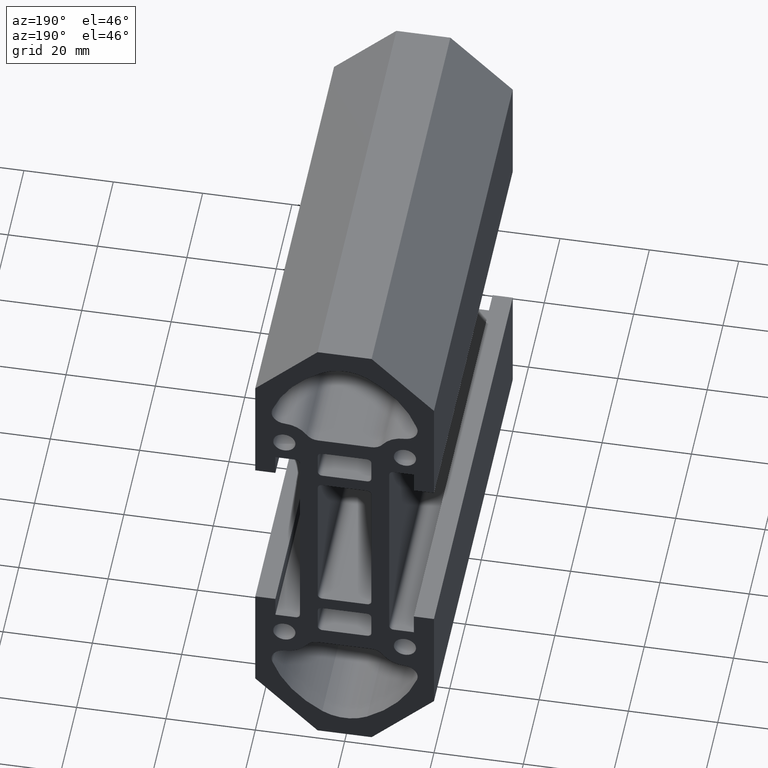
[diagram: clean part render]
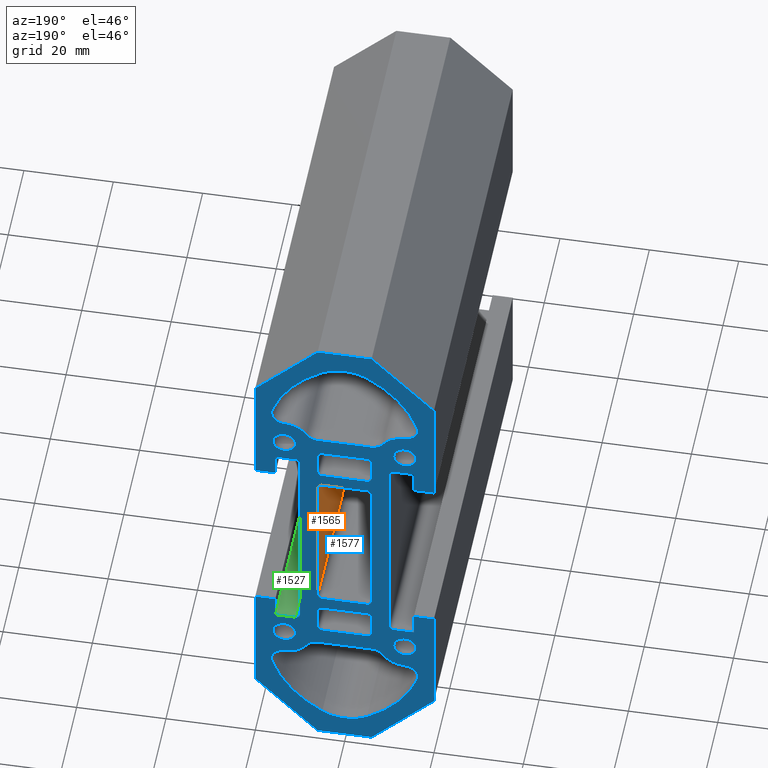
[diagram: same view with three faces highlighted in distinct colors, each labeled with its STEP entity id]
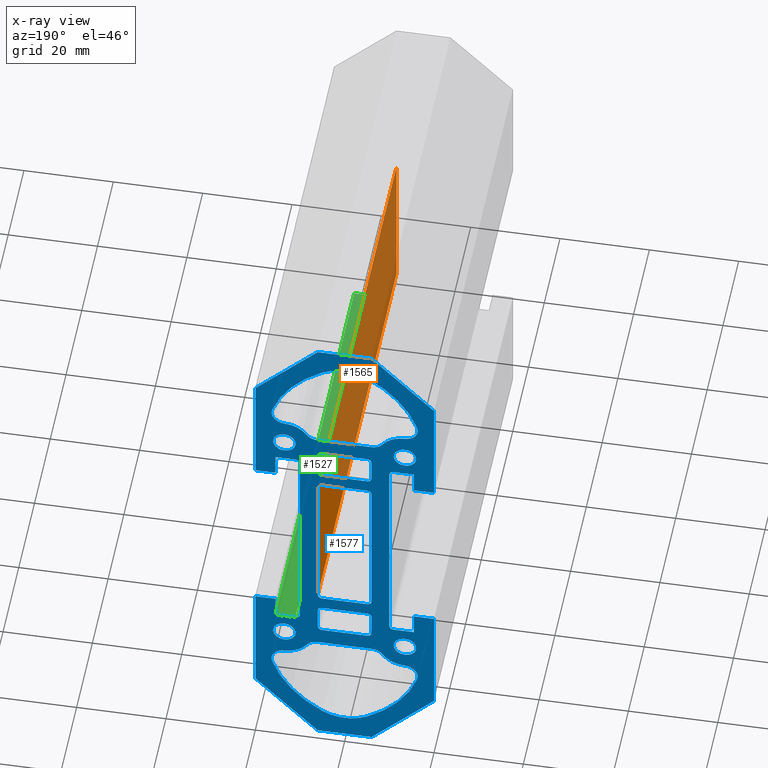
[diagram: x-ray of the same camera — body ghosted, the three highlighted faces saturated]
A machine part, auxiliary view with three faces highlighted in distinct colors.
The next image is the same camera in x-ray (body ghosted, the three faces saturated) — at least one of them is partly hidden behind the body in this view.
Their STEP definitions:

[orange] entity #1565 — the highlighted planar face has unit normal (-1, 0, 0).
#59=PLANE('',#1742);
#137=FACE_OUTER_BOUND('',#215,.T.);
#215=EDGE_LOOP('',(#1263,#1264,#1265,#1266));
#256=LINE('',#2257,#408);
#333=LINE('',#2488,#485);
#366=LINE('',#2613,#518);
#367=LINE('',#2614,#519);
#408=VECTOR('',#1791,10.);
#485=VECTOR('',#2022,10.);
#518=VECTOR('',#2159,10.);
#519=VECTOR('',#2160,10.);
#641=VERTEX_POINT('',#2253);
#643=VERTEX_POINT('',#2256);
#717=VERTEX_POINT('',#2481);
#720=VERTEX_POINT('',#2486);
#795=EDGE_CURVE('',#643,#641,#256,.T.);
#911=EDGE_CURVE('',#720,#717,#333,.T.);
#974=EDGE_CURVE('',#720,#643,#366,.T.);
#975=EDGE_CURVE('',#717,#641,#367,.T.);
#1263=ORIENTED_EDGE('',*,*,#911,.F.);
#1264=ORIENTED_EDGE('',*,*,#974,.T.);
#1265=ORIENTED_EDGE('',*,*,#795,.T.);
#1266=ORIENTED_EDGE('',*,*,#975,.F.);
#1565=ADVANCED_FACE('',(#137),#59,.T.);
#1742=AXIS2_PLACEMENT_3D('',#2612,#2157,#2158);
#1791=DIRECTION('',(0.,-1.,0.));
#2022=DIRECTION('',(0.,-1.,0.));
#2157=DIRECTION('center_axis',(-1.,0.,0.));
#2158=DIRECTION('ref_axis',(0.,0.,1.));
#2159=DIRECTION('',(0.,0.,-1.));
#2160=DIRECTION('',(0.,0.,-1.));
#2253=CARTESIAN_POINT('',(6.,0.,-17.));
#2256=CARTESIAN_POINT('',(6.,100.,-17.));
#2257=CARTESIAN_POINT('',(6.,0.,-17.));
#2481=CARTESIAN_POINT('',(6.,0.,17.));
#2486=CARTESIAN_POINT('',(6.,100.,17.));
#2488=CARTESIAN_POINT('',(6.,0.,17.));
#2612=CARTESIAN_POINT('Origin',(6.,0.,0.));
#2613=CARTESIAN_POINT('',(6.,100.,0.));
#2614=CARTESIAN_POINT('',(6.,0.,0.));

[blue] entity #1577 — the highlighted planar face has unit normal (0, 1, 0).
#15=FACE_BOUND('',#228,.T.);
#16=FACE_BOUND('',#229,.T.);
#17=FACE_BOUND('',#230,.T.);
#18=FACE_BOUND('',#231,.T.);
#19=FACE_BOUND('',#232,.T.);
#20=FACE_BOUND('',#233,.T.);
#21=FACE_BOUND('',#234,.T.);
#22=FACE_BOUND('',#235,.T.);
#23=FACE_BOUND('',#236,.T.);
#71=PLANE('',#1754);
#149=FACE_OUTER_BOUND('',#227,.T.);
#227=EDGE_LOOP('',(#1311,#1312,#1313,#1314,#1315,#1316,#1317,#1318,#1319,
#1320,#1321,#1322,#1323,#1324,#1325,#1326,#1327,#1328,#1329,#1330,#1331,
#1332,#1333,#1334,#1335,#1336,#1337,#1338));
#228=EDGE_LOOP('',(#1339,#1340,#1341,#1342,#1343,#1344,#1345,#1346));
#229=EDGE_LOOP('',(#1347));
#230=EDGE_LOOP('',(#1348));
#231=EDGE_LOOP('',(#1349,#1350,#1351,#1352,#1353,#1354,#1355,#1356));
#232=EDGE_LOOP('',(#1357,#1358,#1359,#1360,#1361,#1362,#1363,#1364,#1365,
#1366));
#233=EDGE_LOOP('',(#1367,#1368,#1369,#1370,#1371,#1372,#1373,#1374,#1375,
#1376));
#234=EDGE_LOOP('',(#1377,#1378,#1379,#1380,#1381,#1382,#1383,#1384));
#235=EDGE_LOOP('',(#1385));
#236=EDGE_LOOP('',(#1386));
#251=LINE('',#2239,#403);
#259=LINE('',#2263,#411);
#262=LINE('',#2275,#414);
#268=LINE('',#2290,#420);
#270=LINE('',#2299,#422);
#275=LINE('',#2311,#427);
#287=LINE('',#2371,#439);
#292=LINE('',#2389,#444);
#295=LINE('',#2395,#447);
#298=LINE('',#2401,#450);
#301=LINE('',#2407,#453);
#304=LINE('',#2413,#456);
#307=LINE('',#2419,#459);
#310=LINE('',#2425,#462);
#313=LINE('',#2431,#465);
#316=LINE('',#2437,#468);
#318=LINE('',#2440,#470);
#322=LINE('',#2452,#474);
#327=LINE('',#2467,#479);
#331=LINE('',#2479,#483);
#334=LINE('',#2490,#486);
#340=LINE('',#2506,#492);
#343=LINE('',#2517,#495);
#348=LINE('',#2530,#500);
#350=LINE('',#2538,#502);
#363=LINE('',#2599,#515);
#366=LINE('',#2613,#518);
#368=LINE('',#2617,#520);
#372=LINE('',#2625,#524);
#375=LINE('',#2631,#527);
#378=LINE('',#2637,#530);
#381=LINE('',#2643,#533);
#384=LINE('',#2649,#536);
#387=LINE('',#2655,#539);
#390=LINE('',#2661,#542);
#393=LINE('',#2667,#545);
#396=LINE('',#2671,#548);
#397=LINE('',#2673,#549);
#403=VECTOR('',#1776,10.);
#411=VECTOR('',#1798,10.);
#414=VECTOR('',#1809,10.);
#420=VECTOR('',#1823,10.);
#422=VECTOR('',#1833,10.);
#427=VECTOR('',#1846,10.);
#439=VECTOR('',#1914,10.);
#444=VECTOR('',#1933,10.);
#447=VECTOR('',#1938,10.);
#450=VECTOR('',#1943,10.);
#453=VECTOR('',#1948,10.);
#456=VECTOR('',#1953,10.);
#459=VECTOR('',#1958,10.);
#462=VECTOR('',#1963,10.);
#465=VECTOR('',#1968,10.);
#468=VECTOR('',#1973,10.);
#470=VECTOR('',#1977,10.);
#474=VECTOR('',#1989,10.);
#479=VECTOR('',#2002,10.);
#483=VECTOR('',#2014,10.);
#486=VECTOR('',#2025,10.);
#492=VECTOR('',#2039,10.);
#495=VECTOR('',#2050,10.);
#500=VECTOR('',#2063,10.);
#502=VECTOR('',#2073,10.);
#515=VECTOR('',#2142,10.);
#518=VECTOR('',#2159,10.);
#520=VECTOR('',#2163,10.);
#524=VECTOR('',#2169,10.);
#527=VECTOR('',#2174,10.);
#530=VECTOR('',#2179,10.);
#533=VECTOR('',#2184,10.);
#536=VECTOR('',#2189,10.);
#539=VECTOR('',#2194,10.);
#542=VECTOR('',#2199,10.);
#545=VECTOR('',#2204,10.);
#548=VECTOR('',#2209,10.);
#549=VECTOR('',#2212,10.);
#552=CIRCLE('',#1604,1.);
#554=CIRCLE('',#1607,1.);
#556=CIRCLE('',#1611,1.);
#558=CIRCLE('',#1614,1.);
#560=CIRCLE('',#1618,1.);
#562=CIRCLE('',#1622,1.);
#564=CIRCLE('',#1626,1.);
#566=CIRCLE('',#1630,1.);
#568=CIRCLE('',#1634,3.);
#570=CIRCLE('',#1637,6.);
#572=CIRCLE('',#1640,3.);
#574=CIRCLE('',#1643,25.);
#576=CIRCLE('',#1646,9.99999999999997);
#578=CIRCLE('',#1649,25.);
#580=CIRCLE('',#1652,3.);
#582=CIRCLE('',#1655,6.);
#584=CIRCLE('',#1658,3.);
#586=CIRCLE('',#1662,2.5);
#588=CIRCLE('',#1665,2.5);
#590=CIRCLE('',#1678,1.);
#592=CIRCLE('',#1682,1.);
#594=CIRCLE('',#1686,1.);
#596=CIRCLE('',#1690,1.);
#598=CIRCLE('',#1694,1.);
#600=CIRCLE('',#1698,1.);
#602=CIRCLE('',#1702,1.);
#604=CIRCLE('',#1706,1.);
#606=CIRCLE('',#1710,3.);
#608=CIRCLE('',#1713,6.);
#610=CIRCLE('',#1716,3.);
#612=CIRCLE('',#1719,25.);
#614=CIRCLE('',#1722,9.99999999999997);
#616=CIRCLE('',#1725,25.);
#618=CIRCLE('',#1728,3.);
#620=CIRCLE('',#1731,6.);
#622=CIRCLE('',#1734,3.);
#624=CIRCLE('',#1738,2.5);
#626=CIRCLE('',#1741,2.5);
#629=VERTEX_POINT('',#2223);
#630=VERTEX_POINT('',#2225);
#633=VERTEX_POINT('',#2232);
#634=VERTEX_POINT('',#2234);
#635=VERTEX_POINT('',#2238);
#639=VERTEX_POINT('',#2247);
#640=VERTEX_POINT('',#2249);
#643=VERTEX_POINT('',#2256);
#644=VERTEX_POINT('',#2258);
#647=VERTEX_POINT('',#2268);
#648=VERTEX_POINT('',#2270);
#649=VERTEX_POINT('',#2274);
#653=VERTEX_POINT('',#2283);
#654=VERTEX_POINT('',#2285);
#656=VERTEX_POINT('',#2294);
#657=VERTEX_POINT('',#2298);
#660=VERTEX_POINT('',#2306);
#663=VERTEX_POINT('',#2316);
#664=VERTEX_POINT('',#2318);
#666=VERTEX_POINT('',#2324);
#668=VERTEX_POINT('',#2330);
#670=VERTEX_POINT('',#2336);
#672=VERTEX_POINT('',#2342);
#674=VERTEX_POINT('',#2348);
#676=VERTEX_POINT('',#2354);
#678=VERTEX_POINT('',#2360);
#680=VERTEX_POINT('',#2366);
#682=VERTEX_POINT('',#2375);
#684=VERTEX_POINT('',#2381);
#686=VERTEX_POINT('',#2387);
#688=VERTEX_POINT('',#2393);
#690=VERTEX_POINT('',#2399);
#692=VERTEX_POINT('',#2405);
#694=VERTEX_POINT('',#2411);
#696=VERTEX_POINT('',#2417);
#698=VERTEX_POINT('',#2423);
#700=VERTEX_POINT('',#2429);
#702=VERTEX_POINT('',#2435);
#705=VERTEX_POINT('',#2445);
#706=VERTEX_POINT('',#2447);
#709=VERTEX_POINT('',#2457);
#710=VERTEX_POINT('',#2459);
#712=VERTEX_POINT('',#2465);
#715=VERTEX_POINT('',#2472);
#716=VERTEX_POINT('',#2474);
#719=VERTEX_POINT('',#2484);
#720=VERTEX_POINT('',#2486);
#723=VERTEX_POINT('',#2496);
#724=VERTEX_POINT('',#2498);
#726=VERTEX_POINT('',#2504);
#729=VERTEX_POINT('',#2511);
#730=VERTEX_POINT('',#2513);
#732=VERTEX_POINT('',#2522);
#734=VERTEX_POINT('',#2528);
#736=VERTEX_POINT('',#2534);
#739=VERTEX_POINT('',#2544);
#740=VERTEX_POINT('',#2546);
#742=VERTEX_POINT('',#2552);
#744=VERTEX_POINT('',#2558);
#746=VERTEX_POINT('',#2564);
#748=VERTEX_POINT('',#2570);
#750=VERTEX_POINT('',#2576);
#752=VERTEX_POINT('',#2582);
#754=VERTEX_POINT('',#2588);
#756=VERTEX_POINT('',#2594);
#758=VERTEX_POINT('',#2603);
#760=VERTEX_POINT('',#2609);
#761=VERTEX_POINT('',#2616);
#764=VERTEX_POINT('',#2624);
#766=VERTEX_POINT('',#2630);
#768=VERTEX_POINT('',#2636);
#770=VERTEX_POINT('',#2642);
#772=VERTEX_POINT('',#2648);
#774=VERTEX_POINT('',#2654);
#776=VERTEX_POINT('',#2660);
#778=VERTEX_POINT('',#2666);
#781=EDGE_CURVE('',#630,#629,#552,.T.);
#785=EDGE_CURVE('',#634,#633,#554,.T.);
#787=EDGE_CURVE('',#634,#635,#251,.T.);
#792=EDGE_CURVE('',#640,#639,#556,.T.);
#796=EDGE_CURVE('',#644,#643,#558,.T.);
#799=EDGE_CURVE('',#644,#639,#259,.T.);
#802=EDGE_CURVE('',#648,#647,#560,.T.);
#804=EDGE_CURVE('',#648,#649,#262,.T.);
#809=EDGE_CURVE('',#654,#653,#562,.T.);
#812=EDGE_CURVE('',#654,#647,#268,.T.);
#814=EDGE_CURVE('',#656,#649,#564,.T.);
#816=EDGE_CURVE('',#656,#657,#270,.T.);
#820=EDGE_CURVE('',#660,#657,#566,.T.);
#823=EDGE_CURVE('',#660,#653,#275,.T.);
#826=EDGE_CURVE('',#663,#664,#568,.T.);
#829=EDGE_CURVE('',#664,#666,#570,.T.);
#832=EDGE_CURVE('',#666,#668,#572,.T.);
#835=EDGE_CURVE('',#668,#670,#574,.T.);
#838=EDGE_CURVE('',#670,#672,#576,.T.);
#841=EDGE_CURVE('',#672,#674,#578,.T.);
#844=EDGE_CURVE('',#674,#676,#580,.T.);
#847=EDGE_CURVE('',#676,#678,#582,.T.);
#850=EDGE_CURVE('',#678,#680,#584,.T.);
#853=EDGE_CURVE('',#680,#663,#287,.T.);
#856=EDGE_CURVE('',#682,#682,#586,.T.);
#859=EDGE_CURVE('',#684,#684,#588,.T.);
#862=EDGE_CURVE('',#686,#629,#292,.T.);
#865=EDGE_CURVE('',#688,#686,#295,.T.);
#868=EDGE_CURVE('',#690,#688,#298,.T.);
#871=EDGE_CURVE('',#692,#690,#301,.T.);
#874=EDGE_CURVE('',#694,#692,#304,.T.);
#877=EDGE_CURVE('',#696,#694,#307,.T.);
#880=EDGE_CURVE('',#698,#696,#310,.T.);
#883=EDGE_CURVE('',#700,#698,#313,.T.);
#886=EDGE_CURVE('',#702,#700,#316,.T.);
#888=EDGE_CURVE('',#635,#702,#318,.T.);
#891=EDGE_CURVE('',#705,#706,#590,.T.);
#894=EDGE_CURVE('',#705,#630,#322,.T.);
#897=EDGE_CURVE('',#709,#710,#592,.T.);
#901=EDGE_CURVE('',#709,#712,#327,.T.);
#904=EDGE_CURVE('',#715,#716,#594,.T.);
#907=EDGE_CURVE('',#715,#640,#331,.T.);
#910=EDGE_CURVE('',#719,#720,#596,.T.);
#912=EDGE_CURVE('',#719,#716,#334,.T.);
#916=EDGE_CURVE('',#723,#724,#598,.T.);
#920=EDGE_CURVE('',#723,#726,#340,.T.);
#923=EDGE_CURVE('',#729,#730,#600,.T.);
#925=EDGE_CURVE('',#729,#724,#343,.T.);
#929=EDGE_CURVE('',#732,#726,#602,.T.);
#932=EDGE_CURVE('',#732,#734,#348,.T.);
#935=EDGE_CURVE('',#736,#734,#604,.T.);
#936=EDGE_CURVE('',#736,#730,#350,.T.);
#940=EDGE_CURVE('',#740,#739,#606,.T.);
#944=EDGE_CURVE('',#739,#742,#608,.T.);
#947=EDGE_CURVE('',#742,#744,#610,.T.);
#950=EDGE_CURVE('',#744,#746,#612,.T.);
#953=EDGE_CURVE('',#746,#748,#614,.T.);
#956=EDGE_CURVE('',#748,#750,#616,.T.);
#959=EDGE_CURVE('',#750,#752,#618,.T.);
#962=EDGE_CURVE('',#752,#754,#620,.T.);
#965=EDGE_CURVE('',#754,#756,#622,.T.);
#967=EDGE_CURVE('',#756,#740,#363,.T.);
#970=EDGE_CURVE('',#758,#758,#624,.T.);
#973=EDGE_CURVE('',#760,#760,#626,.T.);
#974=EDGE_CURVE('',#720,#643,#366,.T.);
#976=EDGE_CURVE('',#761,#706,#368,.T.);
#980=EDGE_CURVE('',#764,#761,#372,.T.);
#983=EDGE_CURVE('',#766,#764,#375,.T.);
#986=EDGE_CURVE('',#768,#766,#378,.T.);
#989=EDGE_CURVE('',#770,#768,#381,.T.);
#992=EDGE_CURVE('',#772,#770,#384,.T.);
#995=EDGE_CURVE('',#774,#772,#387,.T.);
#998=EDGE_CURVE('',#776,#774,#390,.T.);
#1001=EDGE_CURVE('',#778,#776,#393,.T.);
#1004=EDGE_CURVE('',#712,#778,#396,.T.);
#1005=EDGE_CURVE('',#710,#633,#397,.T.);
#1311=ORIENTED_EDGE('',*,*,#894,.T.);
#1312=ORIENTED_EDGE('',*,*,#781,.T.);
#1313=ORIENTED_EDGE('',*,*,#862,.F.);
#1314=ORIENTED_EDGE('',*,*,#865,.F.);
#1315=ORIENTED_EDGE('',*,*,#868,.F.);
#1316=ORIENTED_EDGE('',*,*,#871,.F.);
#1317=ORIENTED_EDGE('',*,*,#874,.F.);
#1318=ORIENTED_EDGE('',*,*,#877,.F.);
#1319=ORIENTED_EDGE('',*,*,#880,.F.);
#1320=ORIENTED_EDGE('',*,*,#883,.F.);
#1321=ORIENTED_EDGE('',*,*,#886,.F.);
#1322=ORIENTED_EDGE('',*,*,#888,.F.);
#1323=ORIENTED_EDGE('',*,*,#787,.F.);
#1324=ORIENTED_EDGE('',*,*,#785,.T.);
#1325=ORIENTED_EDGE('',*,*,#1005,.F.);
#1326=ORIENTED_EDGE('',*,*,#897,.F.);
#1327=ORIENTED_EDGE('',*,*,#901,.T.);
#1328=ORIENTED_EDGE('',*,*,#1004,.T.);
#1329=ORIENTED_EDGE('',*,*,#1001,.T.);
#1330=ORIENTED_EDGE('',*,*,#998,.T.);
#1331=ORIENTED_EDGE('',*,*,#995,.T.);
#1332=ORIENTED_EDGE('',*,*,#992,.T.);
#1333=ORIENTED_EDGE('',*,*,#989,.T.);
#1334=ORIENTED_EDGE('',*,*,#986,.T.);
#1335=ORIENTED_EDGE('',*,*,#983,.T.);
#1336=ORIENTED_EDGE('',*,*,#980,.T.);
#1337=ORIENTED_EDGE('',*,*,#976,.T.);
#1338=ORIENTED_EDGE('',*,*,#891,.F.);
#1339=ORIENTED_EDGE('',*,*,#974,.F.);
#1340=ORIENTED_EDGE('',*,*,#910,.F.);
#1341=ORIENTED_EDGE('',*,*,#912,.T.);
#1342=ORIENTED_EDGE('',*,*,#904,.F.);
#1343=ORIENTED_EDGE('',*,*,#907,.T.);
#1344=ORIENTED_EDGE('',*,*,#792,.T.);
#1345=ORIENTED_EDGE('',*,*,#799,.F.);
#1346=ORIENTED_EDGE('',*,*,#796,.T.);
#1347=ORIENTED_EDGE('',*,*,#859,.F.);
#1348=ORIENTED_EDGE('',*,*,#856,.F.);
#1349=ORIENTED_EDGE('',*,*,#823,.F.);
#1350=ORIENTED_EDGE('',*,*,#820,.T.);
#1351=ORIENTED_EDGE('',*,*,#816,.F.);
#1352=ORIENTED_EDGE('',*,*,#814,.T.);
#1353=ORIENTED_EDGE('',*,*,#804,.F.);
#1354=ORIENTED_EDGE('',*,*,#802,.T.);
#1355=ORIENTED_EDGE('',*,*,#812,.F.);
#1356=ORIENTED_EDGE('',*,*,#809,.T.);
#1357=ORIENTED_EDGE('',*,*,#826,.F.);
#1358=ORIENTED_EDGE('',*,*,#853,.F.);
#1359=ORIENTED_EDGE('',*,*,#850,.F.);
#1360=ORIENTED_EDGE('',*,*,#847,.F.);
#1361=ORIENTED_EDGE('',*,*,#844,.F.);
#1362=ORIENTED_EDGE('',*,*,#841,.F.);
#1363=ORIENTED_EDGE('',*,*,#838,.F.);
#1364=ORIENTED_EDGE('',*,*,#835,.F.);
#1365=ORIENTED_EDGE('',*,*,#832,.F.);
#1366=ORIENTED_EDGE('',*,*,#829,.F.);
#1367=ORIENTED_EDGE('',*,*,#940,.T.);
#1368=ORIENTED_EDGE('',*,*,#944,.T.);
#1369=ORIENTED_EDGE('',*,*,#947,.T.);
#1370=ORIENTED_EDGE('',*,*,#950,.T.);
#1371=ORIENTED_EDGE('',*,*,#953,.T.);
#1372=ORIENTED_EDGE('',*,*,#956,.T.);
#1373=ORIENTED_EDGE('',*,*,#959,.T.);
#1374=ORIENTED_EDGE('',*,*,#962,.T.);
#1375=ORIENTED_EDGE('',*,*,#965,.T.);
#1376=ORIENTED_EDGE('',*,*,#967,.T.);
#1377=ORIENTED_EDGE('',*,*,#936,.T.);
#1378=ORIENTED_EDGE('',*,*,#923,.F.);
#1379=ORIENTED_EDGE('',*,*,#925,.T.);
#1380=ORIENTED_EDGE('',*,*,#916,.F.);
#1381=ORIENTED_EDGE('',*,*,#920,.T.);
#1382=ORIENTED_EDGE('',*,*,#929,.F.);
#1383=ORIENTED_EDGE('',*,*,#932,.T.);
#1384=ORIENTED_EDGE('',*,*,#935,.F.);
#1385=ORIENTED_EDGE('',*,*,#970,.T.);
#1386=ORIENTED_EDGE('',*,*,#973,.T.);
#1577=ADVANCED_FACE('',(#149,#15,#16,#17,#18,#19,#20,#21,#22,#23),#71,.T.);
#1604=AXIS2_PLACEMENT_3D('',#2226,#1763,#1764);
#1607=AXIS2_PLACEMENT_3D('',#2235,#1771,#1772);
#1611=AXIS2_PLACEMENT_3D('',#2250,#1784,#1785);
#1614=AXIS2_PLACEMENT_3D('',#2259,#1792,#1793);
#1618=AXIS2_PLACEMENT_3D('',#2271,#1804,#1805);
#1622=AXIS2_PLACEMENT_3D('',#2286,#1817,#1818);
#1626=AXIS2_PLACEMENT_3D('',#2295,#1828,#1829);
#1630=AXIS2_PLACEMENT_3D('',#2307,#1840,#1841);
#1634=AXIS2_PLACEMENT_3D('',#2319,#1852,#1853);
#1637=AXIS2_PLACEMENT_3D('',#2325,#1859,#1860);
#1640=AXIS2_PLACEMENT_3D('',#2331,#1866,#1867);
#1643=AXIS2_PLACEMENT_3D('',#2337,#1873,#1874);
#1646=AXIS2_PLACEMENT_3D('',#2343,#1880,#1881);
#1649=AXIS2_PLACEMENT_3D('',#2349,#1887,#1888);
#1652=AXIS2_PLACEMENT_3D('',#2355,#1894,#1895);
#1655=AXIS2_PLACEMENT_3D('',#2361,#1901,#1902);
#1658=AXIS2_PLACEMENT_3D('',#2367,#1908,#1909);
#1662=AXIS2_PLACEMENT_3D('',#2377,#1920,#1921);
#1665=AXIS2_PLACEMENT_3D('',#2383,#1927,#1928);
#1678=AXIS2_PLACEMENT_3D('',#2448,#1983,#1984);
#1682=AXIS2_PLACEMENT_3D('',#2460,#1995,#1996);
#1686=AXIS2_PLACEMENT_3D('',#2475,#2008,#2009);
#1690=AXIS2_PLACEMENT_3D('',#2487,#2020,#2021);
#1694=AXIS2_PLACEMENT_3D('',#2499,#2032,#2033);
#1698=AXIS2_PLACEMENT_3D('',#2514,#2045,#2046);
#1702=AXIS2_PLACEMENT_3D('',#2524,#2057,#2058);
#1706=AXIS2_PLACEMENT_3D('',#2536,#2069,#2070);
#1710=AXIS2_PLACEMENT_3D('',#2547,#2080,#2081);
#1713=AXIS2_PLACEMENT_3D('',#2554,#2088,#2089);
#1716=AXIS2_PLACEMENT_3D('',#2560,#2095,#2096);
#1719=AXIS2_PLACEMENT_3D('',#2566,#2102,#2103);
#1722=AXIS2_PLACEMENT_3D('',#2572,#2109,#2110);
#1725=AXIS2_PLACEMENT_3D('',#2578,#2116,#2117);
#1728=AXIS2_PLACEMENT_3D('',#2584,#2123,#2124);
#1731=AXIS2_PLACEMENT_3D('',#2590,#2130,#2131);
#1734=AXIS2_PLACEMENT_3D('',#2596,#2137,#2138);
#1738=AXIS2_PLACEMENT_3D('',#2605,#2148,#2149);
#1741=AXIS2_PLACEMENT_3D('',#2611,#2155,#2156);
#1754=AXIS2_PLACEMENT_3D('',#2675,#2214,#2215);
#1763=DIRECTION('center_axis',(0.,-1.,0.));
#1764=DIRECTION('ref_axis',(-0.707106781186549,0.,-0.707106781186546));
#1771=DIRECTION('center_axis',(0.,-1.,0.));
#1772=DIRECTION('ref_axis',(0.707106781186546,0.,-0.707106781186549));
#1776=DIRECTION('',(-1.,0.,0.));
#1784=DIRECTION('center_axis',(0.,-1.,0.));
#1785=DIRECTION('ref_axis',(-0.707106781186548,0.,-0.707106781186548));
#1792=DIRECTION('center_axis',(0.,-1.,0.));
#1793=DIRECTION('ref_axis',(0.707106781186548,0.,-0.707106781186548));
#1798=DIRECTION('',(-1.,0.,0.));
#1804=DIRECTION('center_axis',(0.,-1.,0.));
#1805=DIRECTION('ref_axis',(0.707106781186548,0.,0.707106781186547));
#1809=DIRECTION('',(0.,0.,-1.));
#1817=DIRECTION('center_axis',(0.,-1.,0.));
#1818=DIRECTION('ref_axis',(-0.707106781186549,0.,0.707106781186546));
#1823=DIRECTION('',(1.,0.,0.));
#1828=DIRECTION('center_axis',(0.,-1.,0.));
#1829=DIRECTION('ref_axis',(0.707106781186549,0.,-0.707106781186546));
#1833=DIRECTION('',(-1.,0.,0.));
#1840=DIRECTION('center_axis',(0.,-1.,0.));
#1841=DIRECTION('ref_axis',(-0.707106781186548,0.,-0.707106781186547));
#1846=DIRECTION('',(0.,0.,1.));
#1852=DIRECTION('center_axis',(0.,1.,0.));
#1853=DIRECTION('ref_axis',(0.831479419283098,0.,0.555555555555556));
#1859=DIRECTION('center_axis',(0.,-1.,0.));
#1860=DIRECTION('ref_axis',(0.831479419283098,0.,0.555555555555555));
#1866=DIRECTION('center_axis',(0.,1.,0.));
#1867=DIRECTION('ref_axis',(0.948047032139367,0.,-0.318130201099705));
#1873=DIRECTION('center_axis',(0.,1.,0.));
#1874=DIRECTION('ref_axis',(0.5,0.,-0.866025403784439));
#1880=DIRECTION('center_axis',(0.,1.,0.));
#1881=DIRECTION('ref_axis',(-0.5,0.,-0.866025403784439));
#1887=DIRECTION('center_axis',(0.,1.,0.));
#1888=DIRECTION('ref_axis',(-0.948047032139366,0.,-0.318130201099707));
#1894=DIRECTION('center_axis',(0.,1.,0.));
#1895=DIRECTION('ref_axis',(-0.0158850325482159,0.,0.999873824910394));
#1901=DIRECTION('center_axis',(0.,-1.,0.));
#1902=DIRECTION('ref_axis',(-0.0158850325482163,0.,0.999873824910395));
#1908=DIRECTION('center_axis',(0.,1.,0.));
#1909=DIRECTION('ref_axis',(0.,0.,1.));
#1914=DIRECTION('',(1.,0.,-4.79762486382814E-15));
#1920=DIRECTION('center_axis',(0.,1.,0.));
#1921=DIRECTION('ref_axis',(1.,0.,0.));
#1927=DIRECTION('center_axis',(0.,1.,0.));
#1928=DIRECTION('ref_axis',(1.,0.,0.));
#1933=DIRECTION('',(-1.,0.,0.));
#1938=DIRECTION('',(0.,0.,-1.));
#1943=DIRECTION('',(-1.,0.,0.));
#1948=DIRECTION('',(8.52582311447966E-17,0.,1.));
#1953=DIRECTION('',(0.707106781186549,0.,0.707106781186546));
#1958=DIRECTION('',(1.,0.,0.));
#1963=DIRECTION('',(0.707106781186547,0.,-0.707106781186548));
#1968=DIRECTION('',(0.,0.,-1.));
#1973=DIRECTION('',(-1.,0.,0.));
#1977=DIRECTION('',(0.,0.,1.));
#1983=DIRECTION('center_axis',(0.,1.,0.));
#1984=DIRECTION('ref_axis',(-0.707106781186549,0.,0.707106781186546));
#1989=DIRECTION('',(-1.77635683940025E-16,0.,-1.));
#1995=DIRECTION('center_axis',(0.,1.,0.));
#1996=DIRECTION('ref_axis',(0.707106781186546,0.,0.707106781186549));
#2002=DIRECTION('',(-1.,0.,0.));
#2008=DIRECTION('center_axis',(0.,1.,0.));
#2009=DIRECTION('ref_axis',(-0.707106781186548,0.,0.707106781186548));
#2014=DIRECTION('',(0.,0.,-1.));
#2020=DIRECTION('center_axis',(0.,1.,0.));
#2021=DIRECTION('ref_axis',(0.707106781186548,0.,0.707106781186548));
#2025=DIRECTION('',(-1.,0.,0.));
#2032=DIRECTION('center_axis',(0.,1.,0.));
#2033=DIRECTION('ref_axis',(0.707106781186548,0.,-0.707106781186547));
#2039=DIRECTION('',(0.,0.,1.));
#2045=DIRECTION('center_axis',(0.,1.,0.));
#2046=DIRECTION('ref_axis',(-0.707106781186549,0.,-0.707106781186546));
#2050=DIRECTION('',(1.,0.,0.));
#2057=DIRECTION('center_axis',(0.,1.,0.));
#2058=DIRECTION('ref_axis',(0.707106781186549,0.,0.707106781186546));
#2063=DIRECTION('',(-1.,0.,0.));
#2069=DIRECTION('center_axis',(0.,1.,0.));
#2070=DIRECTION('ref_axis',(-0.707106781186548,0.,0.707106781186547));
#2073=DIRECTION('',(0.,0.,-1.));
#2080=DIRECTION('center_axis',(0.,-1.,0.));
#2081=DIRECTION('ref_axis',(0.831479419283098,0.,-0.555555555555556));
#2088=DIRECTION('center_axis',(0.,1.,0.));
#2089=DIRECTION('ref_axis',(0.831479419283098,0.,-0.555555555555555));
#2095=DIRECTION('center_axis',(0.,-1.,0.));
#2096=DIRECTION('ref_axis',(0.948047032139367,0.,0.318130201099705));
#2102=DIRECTION('center_axis',(0.,-1.,0.));
#2103=DIRECTION('ref_axis',(0.5,0.,0.866025403784439));
#2109=DIRECTION('center_axis',(0.,-1.,0.));
#2110=DIRECTION('ref_axis',(-0.5,0.,0.866025403784439));
#2116=DIRECTION('center_axis',(0.,-1.,0.));
#2117=DIRECTION('ref_axis',(-0.948047032139366,0.,0.318130201099707));
#2123=DIRECTION('center_axis',(0.,-1.,0.));
#2124=DIRECTION('ref_axis',(-0.0158850325482159,0.,-0.999873824910394));
#2130=DIRECTION('center_axis',(0.,1.,0.));
#2131=DIRECTION('ref_axis',(-0.0158850325482163,0.,-0.999873824910395));
#2137=DIRECTION('center_axis',(0.,-1.,0.));
#2138=DIRECTION('ref_axis',(0.,0.,-1.));
#2142=DIRECTION('',(1.,0.,4.79762486382814E-15));
#2148=DIRECTION('center_axis',(0.,-1.,0.));
#2149=DIRECTION('ref_axis',(1.,0.,0.));
#2155=DIRECTION('center_axis',(0.,-1.,0.));
#2156=DIRECTION('ref_axis',(1.,0.,0.));
#2159=DIRECTION('',(0.,0.,-1.));
#2163=DIRECTION('',(-1.,0.,0.));
#2169=DIRECTION('',(0.,0.,1.));
#2174=DIRECTION('',(-1.,0.,0.));
#2179=DIRECTION('',(8.52582311447966E-17,0.,-1.));
#2184=DIRECTION('',(0.707106781186549,0.,-0.707106781186546));
#2189=DIRECTION('',(1.,0.,0.));
#2194=DIRECTION('',(0.707106781186547,0.,0.707106781186548));
#2199=DIRECTION('',(0.,0.,1.));
#2204=DIRECTION('',(-1.,0.,0.));
#2209=DIRECTION('',(0.,0.,-1.));
#2212=DIRECTION('',(-1.77635683940025E-16,0.,-1.));
#2214=DIRECTION('center_axis',(0.,1.,0.));
#2215=DIRECTION('ref_axis',(0.,0.,1.));
#2223=CARTESIAN_POINT('',(11.,100.,-25.));
#2225=CARTESIAN_POINT('',(10.,100.,-24.));
#2226=CARTESIAN_POINT('Origin',(11.,100.,-24.));
#2232=CARTESIAN_POINT('',(-10.,100.,-24.));
#2234=CARTESIAN_POINT('',(-11.,100.,-25.));
#2235=CARTESIAN_POINT('Origin',(-11.,100.,-24.));
#2238=CARTESIAN_POINT('',(-15.5,100.,-25.));
#2239=CARTESIAN_POINT('',(-10.,100.,-25.));
#2247=CARTESIAN_POINT('',(-5.,100.,-18.));
#2249=CARTESIAN_POINT('',(-6.,100.,-17.));
#2250=CARTESIAN_POINT('Origin',(-5.,100.,-17.));
#2256=CARTESIAN_POINT('',(6.,100.,-17.));
#2258=CARTESIAN_POINT('',(5.,100.,-18.));
#2259=CARTESIAN_POINT('Origin',(5.,100.,-17.));
#2263=CARTESIAN_POINT('',(6.,100.,-18.));
#2268=CARTESIAN_POINT('',(5.,100.,-21.));
#2270=CARTESIAN_POINT('',(6.,100.,-22.));
#2271=CARTESIAN_POINT('Origin',(5.,100.,-22.));
#2274=CARTESIAN_POINT('',(6.,100.,-27.));
#2275=CARTESIAN_POINT('',(6.,100.,-27.3179563023573));
#2283=CARTESIAN_POINT('',(-6.,100.,-22.));
#2285=CARTESIAN_POINT('',(-5.,100.,-21.));
#2286=CARTESIAN_POINT('Origin',(-5.,100.,-22.));
#2290=CARTESIAN_POINT('',(3.,100.,-21.));
#2294=CARTESIAN_POINT('',(5.,100.,-28.));
#2295=CARTESIAN_POINT('Origin',(5.,100.,-27.));
#2298=CARTESIAN_POINT('',(-5.,100.,-28.));
#2299=CARTESIAN_POINT('',(-3.,100.,-28.));
#2306=CARTESIAN_POINT('',(-6.,100.,-27.));
#2307=CARTESIAN_POINT('Origin',(-5.,100.,-27.));
#2311=CARTESIAN_POINT('',(-6.,100.,-23.8179563023573));
#2316=CARTESIAN_POINT('',(6.01668522645209,100.,-32.0000000000001));
#2318=CARTESIAN_POINT('',(8.51112348430141,100.,-33.3333333333333));
#2319=CARTESIAN_POINT('Origin',(6.01668522645212,100.,-35.));
#2324=CARTESIAN_POINT('',(13.4046898047107,100.,-35.9992429494624));
#2325=CARTESIAN_POINT('Origin',(13.5,100.,-30.));
#2330=CARTESIAN_POINT('',(16.2011758034841,100.,-39.9532550274927));
#2331=CARTESIAN_POINT('Origin',(13.3570347070661,100.,-38.9988644241936));
#2336=CARTESIAN_POINT('',(4.99999999999999,100.,-53.650635094611));
#2337=CARTESIAN_POINT('Origin',(-7.5,100.,-32.));
#2342=CARTESIAN_POINT('',(-4.99999999999999,100.,-53.650635094611));
#2343=CARTESIAN_POINT('Origin',(0.,100.,-44.9903810567666));
#2348=CARTESIAN_POINT('',(-16.2011758034841,100.,-39.9532550274927));
#2349=CARTESIAN_POINT('Origin',(7.5,100.,-32.));
#2354=CARTESIAN_POINT('',(-13.4046898047107,100.,-35.9992429494624));
#2355=CARTESIAN_POINT('Origin',(-13.3570347070661,100.,-38.9988644241936));
#2360=CARTESIAN_POINT('',(-8.51112348430141,100.,-33.3333333333333));
#2361=CARTESIAN_POINT('Origin',(-13.5,100.,-30.));
#2366=CARTESIAN_POINT('',(-6.01668522645212,100.,-32.));
#2367=CARTESIAN_POINT('Origin',(-6.01668522645212,100.,-35.));
#2371=CARTESIAN_POINT('',(3.00834261322603,100.,-32.));
#2375=CARTESIAN_POINT('',(11.,100.,-30.));
#2377=CARTESIAN_POINT('Origin',(13.5,100.,-30.));
#2381=CARTESIAN_POINT('',(-16.,100.,-30.));
#2383=CARTESIAN_POINT('Origin',(-13.5,100.,-30.));
#2387=CARTESIAN_POINT('',(15.5,100.,-25.));
#2389=CARTESIAN_POINT('',(15.5,100.,-25.));
#2393=CARTESIAN_POINT('',(15.5,100.,-20.));
#2395=CARTESIAN_POINT('',(15.5,100.,-20.));
#2399=CARTESIAN_POINT('',(20.,100.,-20.));
#2401=CARTESIAN_POINT('',(20.,100.,-20.));
#2405=CARTESIAN_POINT('',(20.,100.,-46.0437733628236));
#2407=CARTESIAN_POINT('',(20.,100.,-46.0437733628236));
#2411=CARTESIAN_POINT('',(6.04377336282356,100.,-60.));
#2413=CARTESIAN_POINT('',(6.04377336282356,100.,-60.));
#2417=CARTESIAN_POINT('',(-6.04377336282356,100.,-60.));
#2419=CARTESIAN_POINT('',(-6.04377336282356,100.,-60.));
#2423=CARTESIAN_POINT('',(-20.,100.,-46.0437733628236));
#2425=CARTESIAN_POINT('',(-20.,100.,-46.0437733628236));
#2429=CARTESIAN_POINT('',(-20.,100.,-20.));
#2431=CARTESIAN_POINT('',(-20.,100.,-20.));
#2435=CARTESIAN_POINT('',(-15.5,100.,-20.));
#2437=CARTESIAN_POINT('',(-15.5,100.,-20.));
#2440=CARTESIAN_POINT('',(-15.5,100.,-25.));
#2445=CARTESIAN_POINT('',(10.,100.,24.));
#2447=CARTESIAN_POINT('',(11.,100.,25.));
#2448=CARTESIAN_POINT('Origin',(11.,100.,24.));
#2452=CARTESIAN_POINT('',(10.,100.,25.));
#2457=CARTESIAN_POINT('',(-11.,100.,25.));
#2459=CARTESIAN_POINT('',(-10.,100.,24.));
#2460=CARTESIAN_POINT('Origin',(-11.,100.,24.));
#2465=CARTESIAN_POINT('',(-15.5,100.,25.));
#2467=CARTESIAN_POINT('',(-10.,100.,25.));
#2472=CARTESIAN_POINT('',(-6.,100.,17.));
#2474=CARTESIAN_POINT('',(-5.,100.,18.));
#2475=CARTESIAN_POINT('Origin',(-5.,100.,17.));
#2479=CARTESIAN_POINT('',(-6.,100.,18.));
#2484=CARTESIAN_POINT('',(5.,100.,18.));
#2486=CARTESIAN_POINT('',(6.,100.,17.));
#2487=CARTESIAN_POINT('Origin',(5.,100.,17.));
#2490=CARTESIAN_POINT('',(6.,100.,18.));
#2496=CARTESIAN_POINT('',(6.,100.,22.));
#2498=CARTESIAN_POINT('',(5.,100.,21.));
#2499=CARTESIAN_POINT('Origin',(5.,100.,22.));
#2504=CARTESIAN_POINT('',(6.,100.,27.));
#2506=CARTESIAN_POINT('',(6.,100.,27.3179563023573));
#2511=CARTESIAN_POINT('',(-5.,100.,21.));
#2513=CARTESIAN_POINT('',(-6.,100.,22.));
#2514=CARTESIAN_POINT('Origin',(-5.,100.,22.));
#2517=CARTESIAN_POINT('',(3.,100.,21.));
#2522=CARTESIAN_POINT('',(5.,100.,28.));
#2524=CARTESIAN_POINT('Origin',(5.,100.,27.));
#2528=CARTESIAN_POINT('',(-5.,100.,28.));
#2530=CARTESIAN_POINT('',(-3.,100.,28.));
#2534=CARTESIAN_POINT('',(-6.,100.,27.));
#2536=CARTESIAN_POINT('Origin',(-5.,100.,27.));
#2538=CARTESIAN_POINT('',(-6.,100.,23.8179563023573));
#2544=CARTESIAN_POINT('',(8.51112348430141,100.,33.3333333333333));
#2546=CARTESIAN_POINT('',(6.01668522645209,100.,32.0000000000001));
#2547=CARTESIAN_POINT('Origin',(6.01668522645212,100.,35.));
#2552=CARTESIAN_POINT('',(13.4046898047107,100.,35.9992429494624));
#2554=CARTESIAN_POINT('Origin',(13.5,100.,30.));
#2558=CARTESIAN_POINT('',(16.2011758034841,100.,39.9532550274927));
#2560=CARTESIAN_POINT('Origin',(13.3570347070661,100.,38.9988644241936));
#2564=CARTESIAN_POINT('',(4.99999999999999,100.,53.650635094611));
#2566=CARTESIAN_POINT('Origin',(-7.5,100.,32.));
#2570=CARTESIAN_POINT('',(-4.99999999999999,100.,53.650635094611));
#2572=CARTESIAN_POINT('Origin',(0.,100.,44.9903810567666));
#2576=CARTESIAN_POINT('',(-16.2011758034841,100.,39.9532550274927));
#2578=CARTESIAN_POINT('Origin',(7.5,100.,32.));
#2582=CARTESIAN_POINT('',(-13.4046898047107,100.,35.9992429494624));
#2584=CARTESIAN_POINT('Origin',(-13.3570347070661,100.,38.9988644241936));
#2588=CARTESIAN_POINT('',(-8.51112348430141,100.,33.3333333333333));
#2590=CARTESIAN_POINT('Origin',(-13.5,100.,30.));
#2594=CARTESIAN_POINT('',(-6.01668522645212,100.,32.));
#2596=CARTESIAN_POINT('Origin',(-6.01668522645212,100.,35.));
#2599=CARTESIAN_POINT('',(3.00834261322603,100.,32.));
#2603=CARTESIAN_POINT('',(11.,100.,30.));
#2605=CARTESIAN_POINT('Origin',(13.5,100.,30.));
#2609=CARTESIAN_POINT('',(-16.,100.,30.));
#2611=CARTESIAN_POINT('Origin',(-13.5,100.,30.));
#2613=CARTESIAN_POINT('',(6.,100.,0.));
#2616=CARTESIAN_POINT('',(15.5,100.,25.));
#2617=CARTESIAN_POINT('',(15.5,100.,25.));
#2624=CARTESIAN_POINT('',(15.5,100.,20.));
#2625=CARTESIAN_POINT('',(15.5,100.,20.));
#2630=CARTESIAN_POINT('',(20.,100.,20.));
#2631=CARTESIAN_POINT('',(20.,100.,20.));
#2636=CARTESIAN_POINT('',(20.,100.,46.0437733628236));
#2637=CARTESIAN_POINT('',(20.,100.,46.0437733628236));
#2642=CARTESIAN_POINT('',(6.04377336282356,100.,60.));
#2643=CARTESIAN_POINT('',(6.04377336282356,100.,60.));
#2648=CARTESIAN_POINT('',(-6.04377336282356,100.,60.));
#2649=CARTESIAN_POINT('',(-6.04377336282356,100.,60.));
#2654=CARTESIAN_POINT('',(-20.,100.,46.0437733628236));
#2655=CARTESIAN_POINT('',(-20.,100.,46.0437733628236));
#2660=CARTESIAN_POINT('',(-20.,100.,20.));
#2661=CARTESIAN_POINT('',(-20.,100.,20.));
#2666=CARTESIAN_POINT('',(-15.5,100.,20.));
#2667=CARTESIAN_POINT('',(-15.5,100.,20.));
#2671=CARTESIAN_POINT('',(-15.5,100.,25.));
#2673=CARTESIAN_POINT('',(-10.,100.,0.));
#2675=CARTESIAN_POINT('Origin',(3.33066907387547E-15,100.,26.6359126047146));

[green] entity #1527 — the highlighted planar face has unit normal (0, 0, -1).
#40=PLANE('',#1666);
#99=FACE_OUTER_BOUND('',#177,.T.);
#177=EDGE_LOOP('',(#1111,#1112,#1113,#1114));
#247=LINE('',#2224,#399);
#290=LINE('',#2386,#442);
#291=LINE('',#2388,#443);
#292=LINE('',#2389,#444);
#399=VECTOR('',#1762,10.);
#442=VECTOR('',#1931,10.);
#443=VECTOR('',#1932,10.);
#444=VECTOR('',#1933,10.);
#627=VERTEX_POINT('',#2220);
#629=VERTEX_POINT('',#2223);
#685=VERTEX_POINT('',#2385);
#686=VERTEX_POINT('',#2387);
#780=EDGE_CURVE('',#629,#627,#247,.T.);
#860=EDGE_CURVE('',#685,#627,#290,.T.);
#861=EDGE_CURVE('',#685,#686,#291,.T.);
#862=EDGE_CURVE('',#686,#629,#292,.T.);
#1111=ORIENTED_EDGE('',*,*,#780,.T.);
#1112=ORIENTED_EDGE('',*,*,#860,.F.);
#1113=ORIENTED_EDGE('',*,*,#861,.T.);
#1114=ORIENTED_EDGE('',*,*,#862,.T.);
#1527=ADVANCED_FACE('',(#99),#40,.F.);
#1666=AXIS2_PLACEMENT_3D('',#2384,#1929,#1930);
#1762=DIRECTION('',(0.,-1.,0.));
#1929=DIRECTION('center_axis',(0.,0.,-1.));
#1930=DIRECTION('ref_axis',(-1.,0.,0.));
#1931=DIRECTION('',(-1.,0.,0.));
#1932=DIRECTION('',(0.,1.,0.));
#1933=DIRECTION('',(-1.,0.,0.));
#2220=CARTESIAN_POINT('',(11.,0.,-25.));
#2223=CARTESIAN_POINT('',(11.,100.,-25.));
#2224=CARTESIAN_POINT('',(11.,0.,-25.));
#2384=CARTESIAN_POINT('Origin',(15.5,0.,-25.));
#2385=CARTESIAN_POINT('',(15.5,0.,-25.));
#2386=CARTESIAN_POINT('',(15.5,0.,-25.));
#2387=CARTESIAN_POINT('',(15.5,100.,-25.));
#2388=CARTESIAN_POINT('',(15.5,0.,-25.));
#2389=CARTESIAN_POINT('',(15.5,100.,-25.));